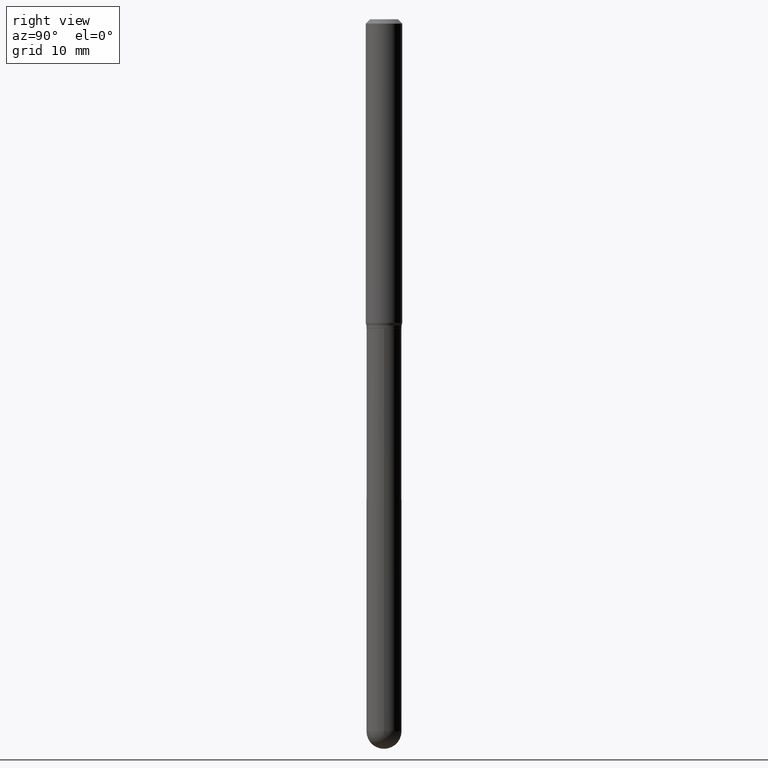
[diagram: clean part render]
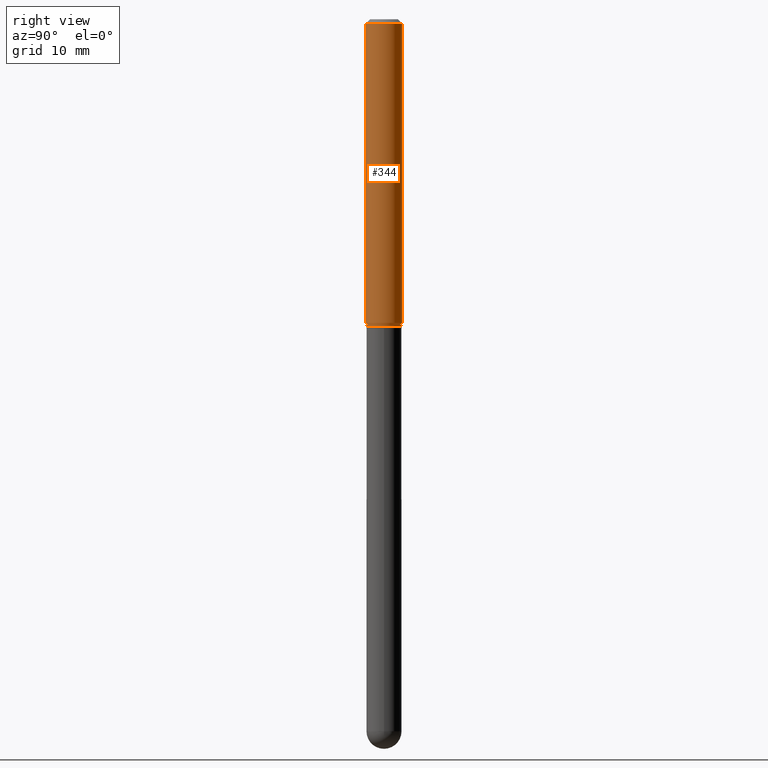
[diagram: same view with one face highlighted and labeled with its STEP entity id]
A machine part, right view. The second image highlights one B-rep face of the part: STEP entity #344.
In plain terms, the highlighted cylindrical surface (edge-blend (fillet) strip) has radius 1.5875 mm, axis along (-0, 0, 1).
Its self-contained STEP definition (entity closure, byte-faithful):
#24 = DIRECTION ( 'NONE',  ( -2.445308575750456249E-29, 3.491710797945358078E-15, 1.000000000000000000 ) ) ;
#29 = DIRECTION ( 'NONE',  ( -2.445308575750456249E-29, 3.491710797945357683E-15, 1.000000000000000000 ) ) ;
#42 = EDGE_CURVE ( 'NONE', #482, #268, #262, .T. ) ;
#101 = AXIS2_PLACEMENT_3D ( 'NONE', #163, #454, #467 ) ;
#105 = EDGE_CURVE ( 'NONE', #202, #449, #124, .T. ) ;
#108 = LINE ( 'NONE', #296, #310 ) ;
#124 = CIRCLE ( 'NONE', #438, 0.06250000000000000000 ) ;
#134 = CARTESIAN_POINT ( 'NONE',  ( 3.667962863625686808E-31, -5.237566196918039483E-17, -0.01500000000000000812 ) ) ;
#143 = CARTESIAN_POINT ( 'NONE',  ( 0.000000000000000000, 0.000000000000000000, 0.000000000000000000 ) ) ;
#155 = AXIS2_PLACEMENT_3D ( 'NONE', #143, #29, #468 ) ;
#159 = CARTESIAN_POINT ( 'NONE',  ( 4.440892098500625669E-16, 0.06250000000000000000, -2.182319248715848552E-16 ) ) ;
#163 = CARTESIAN_POINT ( 'NONE',  ( 2.544758964925770056E-29, -3.633718232584457154E-15, -1.040669872981078825 ) ) ;
#178 = DIRECTION ( 'NONE',  ( -2.445308575750456249E-29, 3.491710797945357683E-15, 1.000000000000000000 ) ) ;
#202 = VERTEX_POINT ( 'NONE', #241 ) ;
#220 = FACE_OUTER_BOUND ( 'NONE', #362, .T. ) ;
#241 = CARTESIAN_POINT ( 'NONE',  ( -4.364351673553912750E-16, -0.06250000000000005551, -0.01499999999999979128 ) ) ;
#262 = CIRCLE ( 'NONE', #101, 0.06250000000000000000 ) ;
#267 = EDGE_CURVE ( 'NONE', #482, #202, #108, .T. ) ;
#268 = VERTEX_POINT ( 'NONE', #386 ) ;
#271 = ORIENTED_EDGE ( 'NONE', *, *, #480, .T. ) ;
#296 = CARTESIAN_POINT ( 'NONE',  ( -4.364351673553916201E-16, -0.06250000000000000000, 2.182319248715848552E-16 ) ) ;
#310 = VECTOR ( 'NONE', #24, 39.37007874015748143 ) ;
#326 = DIRECTION ( 'NONE',  ( -6.982962677686265922E-15, -1.000000000000000000, 3.483106191921935554E-15 ) ) ;
#344 = ADVANCED_FACE ( 'NONE', ( #220 ), #509, .T. ) ;
#358 = ORIENTED_EDGE ( 'NONE', *, *, #267, .F. ) ;
#362 = EDGE_LOOP ( 'NONE', ( #485, #271, #413, #358 ) ) ;
#383 = CARTESIAN_POINT ( 'NONE',  ( 4.440892098500882541E-16, 0.06249999999999995143, -0.01500000000000022669 ) ) ;
#386 = CARTESIAN_POINT ( 'NONE',  ( 4.440892098500880569E-16, 0.06249999999999638484, -1.040669872981079047 ) ) ;
#393 = LINE ( 'NONE', #159, #501 ) ;
#413 = ORIENTED_EDGE ( 'NONE', *, *, #105, .F. ) ;
#436 = DIRECTION ( 'NONE',  ( -2.445308575750456249E-29, 3.491710797945358078E-15, 1.000000000000000000 ) ) ;
#438 = AXIS2_PLACEMENT_3D ( 'NONE', #134, #178, #326 ) ;
#449 = VERTEX_POINT ( 'NONE', #383 ) ;
#454 = DIRECTION ( 'NONE',  ( -2.445308575750456249E-29, 3.491710797945357683E-15, 1.000000000000000000 ) ) ;
#467 = DIRECTION ( 'NONE',  ( -6.982962677686265922E-15, -1.000000000000000000, 4.370956789862821150E-15 ) ) ;
#468 = DIRECTION ( 'NONE',  ( -6.982962677686265922E-15, -1.000000000000000000, 3.491710797945357683E-15 ) ) ;
#480 = EDGE_CURVE ( 'NONE', #268, #449, #393, .T. ) ;
#482 = VERTEX_POINT ( 'NONE', #508 ) ;
#485 = ORIENTED_EDGE ( 'NONE', *, *, #42, .T. ) ;
#501 = VECTOR ( 'NONE', #436, 39.37007874015748143 ) ;
#508 = CARTESIAN_POINT ( 'NONE',  ( -4.364351673553660314E-16, -0.06250000000000360822, -1.040669872981078603 ) ) ;
#509 = CYLINDRICAL_SURFACE ( 'NONE', #155, 0.06250000000000000000 ) ;